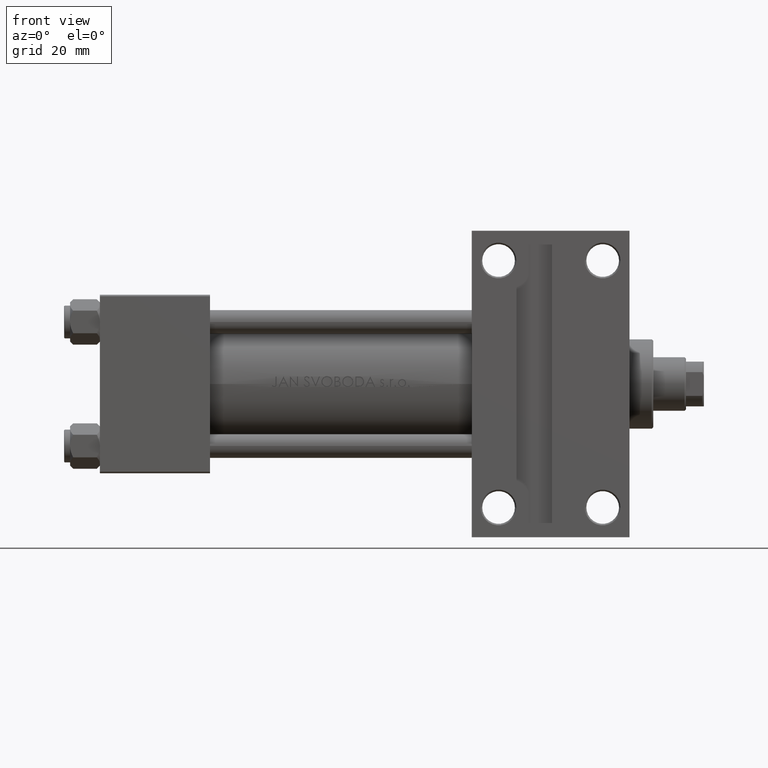
[diagram: clean part render]
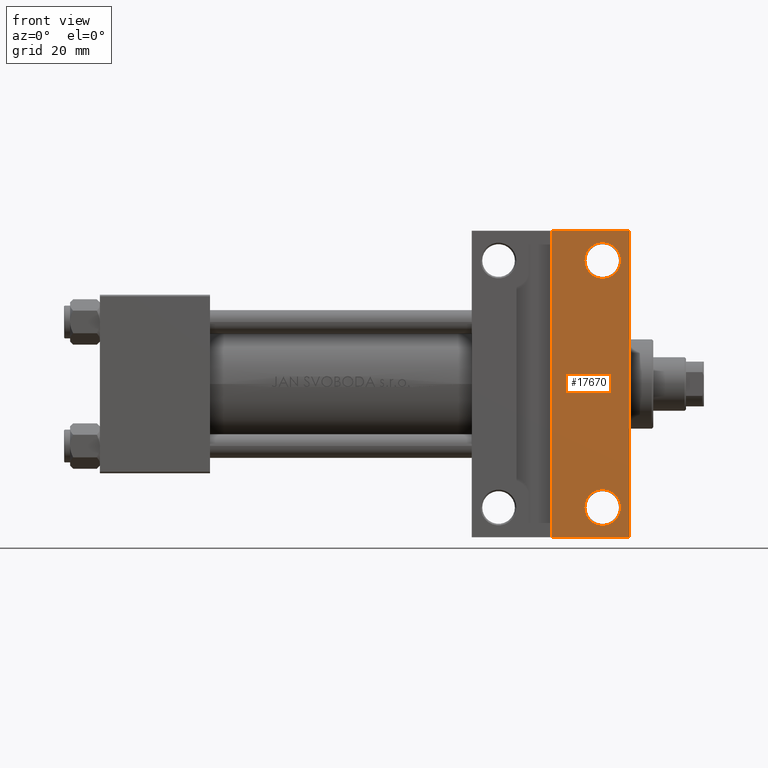
[diagram: same view with one face highlighted and labeled with its STEP entity id]
A machine part, front view. The second image highlights one B-rep face of the part: STEP entity #17670.
In plain terms, the highlighted planar face has unit normal (0, -1, -0).
Its self-contained STEP definition (entity closure, byte-faithful):
#220 = ORIENTED_EDGE ( 'NONE', *, *, #5650, .T. ) ;
#277 = DIRECTION ( 'NONE',  ( 0.000000000000000000, 1.000000000000000000, 0.000000000000000000 ) ) ;
#632 = DIRECTION ( 'NONE',  ( 0.000000000000000000, 1.000000000000000000, 0.000000000000000000 ) ) ;
#751 = DIRECTION ( 'NONE',  ( 1.000000000000000000, -1.309225264888156623E-16, 0.000000000000000000 ) ) ;
#1669 = ORIENTED_EDGE ( 'NONE', *, *, #33616, .T. ) ;
#2149 = LINE ( 'NONE', #31231, #9196 ) ;
#2752 = AXIS2_PLACEMENT_3D ( 'NONE', #33119, #22987, #41945 ) ;
#3604 = DIRECTION ( 'NONE',  ( -0.000000000000000000, -1.156482317317871478E-16, 1.000000000000000000 ) ) ;
#4332 = CIRCLE ( 'NONE', #2752, 5.999499999999962974 ) ;
#5650 = EDGE_CURVE ( 'NONE', #11599, #34262, #2149, .T. ) ;
#6742 = PLANE ( 'NONE',  #7398 ) ;
#7398 = AXIS2_PLACEMENT_3D ( 'NONE', #40507, #10440, #14631 ) ;
#8051 = AXIS2_PLACEMENT_3D ( 'NONE', #45011, #3604, #632 ) ;
#9196 = VECTOR ( 'NONE', #35911, 1000.000000000000000 ) ;
#9356 = CARTESIAN_POINT ( 'NONE',  ( 174.9994999999999550, 41.50000000000000000, -29.99999999999999289 ) ) ;
#9936 = DIRECTION ( 'NONE',  ( 0.000000000000000000, 1.000000000000000000, 0.000000000000000000 ) ) ;
#10440 = DIRECTION ( 'NONE',  ( 0.000000000000000000, 1.156482317317871478E-16, -1.000000000000000000 ) ) ;
#10508 = CIRCLE ( 'NONE', #12866, 5.999499999999962974 ) ;
#10511 = CARTESIAN_POINT ( 'NONE',  ( 163.0005000000000166, 41.50000000000000000, -29.99999999999999289 ) ) ;
#10876 = ORIENTED_EDGE ( 'NONE', *, *, #19443, .T. ) ;
#10958 = DIRECTION ( 'NONE',  ( 0.000000000000000000, -1.000000000000000000, -1.156482317317871478E-16 ) ) ;
#11599 = VERTEX_POINT ( 'NONE', #46846 ) ;
#12866 = AXIS2_PLACEMENT_3D ( 'NONE', #43210, #44854, #9936 ) ;
#13898 = VERTEX_POINT ( 'NONE', #40115 ) ;
#13949 = CIRCLE ( 'NONE', #36779, 5.999499999999962974 ) ;
#14631 = DIRECTION ( 'NONE',  ( 0.000000000000000000, 1.000000000000000000, 1.156482317317871478E-16 ) ) ;
#15758 = EDGE_CURVE ( 'NONE', #43570, #25024, #10508, .T. ) ;
#17670 = ADVANCED_FACE ( 'NONE', ( #36824, #25955, #18327 ), #6742, .T. ) ;
#17745 = CARTESIAN_POINT ( 'NONE',  ( 174.9994999999999550, -41.50000000000000000, -30.00000000000000000 ) ) ;
#18310 = CARTESIAN_POINT ( 'NONE',  ( 163.0005000000000166, -41.50000000000000000, -30.00000000000000000 ) ) ;
#18327 = FACE_BOUND ( 'NONE', #39065, .T. ) ;
#19443 = EDGE_CURVE ( 'NONE', #20417, #37530, #40362, .T. ) ;
#19515 = CARTESIAN_POINT ( 'NONE',  ( 168.9999999999999716, -41.50000000000000000, -30.00000000000000000 ) ) ;
#19995 = LINE ( 'NONE', #27386, #34410 ) ;
#20242 = EDGE_CURVE ( 'NONE', #13898, #42938, #26883, .T. ) ;
#20417 = VERTEX_POINT ( 'NONE', #17745 ) ;
#22054 = CARTESIAN_POINT ( 'NONE',  ( 178.0000000000000000, 30.00000000000000000, -29.99999999999999289 ) ) ;
#22987 = DIRECTION ( 'NONE',  ( -0.000000000000000000, -1.156482317317871478E-16, 1.000000000000000000 ) ) ;
#23684 = DIRECTION ( 'NONE',  ( -0.000000000000000000, -1.156482317317871478E-16, 1.000000000000000000 ) ) ;
#25024 = VERTEX_POINT ( 'NONE', #9356 ) ;
#25897 = EDGE_CURVE ( 'NONE', #25024, #43570, #4332, .T. ) ;
#25955 = FACE_BOUND ( 'NONE', #25989, .T. ) ;
#25989 = EDGE_LOOP ( 'NONE', ( #1669, #10876 ) ) ;
#26883 = LINE ( 'NONE', #31059, #44299 ) ;
#27386 = CARTESIAN_POINT ( 'NONE',  ( 152.0000000000000000, -51.49999999999999289, -29.99999999999999645 ) ) ;
#29334 = EDGE_CURVE ( 'NONE', #42938, #11599, #39328, .T. ) ;
#29883 = CARTESIAN_POINT ( 'NONE',  ( 152.0000000000000000, -51.49999999999999289, -29.99999999999999645 ) ) ;
#31059 = CARTESIAN_POINT ( 'NONE',  ( 125.0000000000000000, 51.49999999999999289, -29.99999999999999645 ) ) ;
#31231 = CARTESIAN_POINT ( 'NONE',  ( 124.9999999999999858, -51.50000000000000711, -29.99999999999999645 ) ) ;
#31457 = ORIENTED_EDGE ( 'NONE', *, *, #33597, .F. ) ;
#31688 = ORIENTED_EDGE ( 'NONE', *, *, #29334, .T. ) ;
#33119 = CARTESIAN_POINT ( 'NONE',  ( 168.9999999999999716, 41.50000000000000000, -29.99999999999999289 ) ) ;
#33597 = EDGE_CURVE ( 'NONE', #13898, #34262, #19995, .T. ) ;
#33616 = EDGE_CURVE ( 'NONE', #37530, #20417, #13949, .T. ) ;
#33859 = EDGE_LOOP ( 'NONE', ( #31457, #43083, #31688, #220 ) ) ;
#34262 = VERTEX_POINT ( 'NONE', #29883 ) ;
#34410 = VECTOR ( 'NONE', #37761, 1000.000000000000000 ) ;
#35911 = DIRECTION ( 'NONE',  ( -1.000000000000000000, 1.309225264888156130E-16, -0.000000000000000000 ) ) ;
#36779 = AXIS2_PLACEMENT_3D ( 'NONE', #19515, #23684, #277 ) ;
#36824 = FACE_OUTER_BOUND ( 'NONE', #33859, .T. ) ;
#36980 = ORIENTED_EDGE ( 'NONE', *, *, #25897, .T. ) ;
#37530 = VERTEX_POINT ( 'NONE', #18310 ) ;
#37761 = DIRECTION ( 'NONE',  ( -0.000000000000000000, -1.000000000000000000, -0.000000000000000000 ) ) ;
#39065 = EDGE_LOOP ( 'NONE', ( #47317, #36980 ) ) ;
#39328 = LINE ( 'NONE', #22054, #43026 ) ;
#40115 = CARTESIAN_POINT ( 'NONE',  ( 152.0000000000000000, 51.49999999999999289, -29.99999999999999645 ) ) ;
#40362 = CIRCLE ( 'NONE', #8051, 5.999499999999962974 ) ;
#40507 = CARTESIAN_POINT ( 'NONE',  ( 178.0000000000000000, 30.00000000000000000, -29.99999999999999289 ) ) ;
#41945 = DIRECTION ( 'NONE',  ( 0.000000000000000000, 1.000000000000000000, 0.000000000000000000 ) ) ;
#42938 = VERTEX_POINT ( 'NONE', #47602 ) ;
#43026 = VECTOR ( 'NONE', #10958, 1000.000000000000000 ) ;
#43083 = ORIENTED_EDGE ( 'NONE', *, *, #20242, .T. ) ;
#43210 = CARTESIAN_POINT ( 'NONE',  ( 168.9999999999999716, 41.50000000000000000, -29.99999999999999289 ) ) ;
#43570 = VERTEX_POINT ( 'NONE', #10511 ) ;
#44299 = VECTOR ( 'NONE', #751, 1000.000000000000000 ) ;
#44854 = DIRECTION ( 'NONE',  ( -0.000000000000000000, -1.156482317317871478E-16, 1.000000000000000000 ) ) ;
#45011 = CARTESIAN_POINT ( 'NONE',  ( 168.9999999999999716, -41.50000000000000000, -30.00000000000000000 ) ) ;
#46846 = CARTESIAN_POINT ( 'NONE',  ( 178.0000000000000000, -51.50000000000001421, -29.99999999999999645 ) ) ;
#47317 = ORIENTED_EDGE ( 'NONE', *, *, #15758, .T. ) ;
#47602 = CARTESIAN_POINT ( 'NONE',  ( 178.0000000000000000, 51.49999999999998579, -29.99999999999999645 ) ) ;